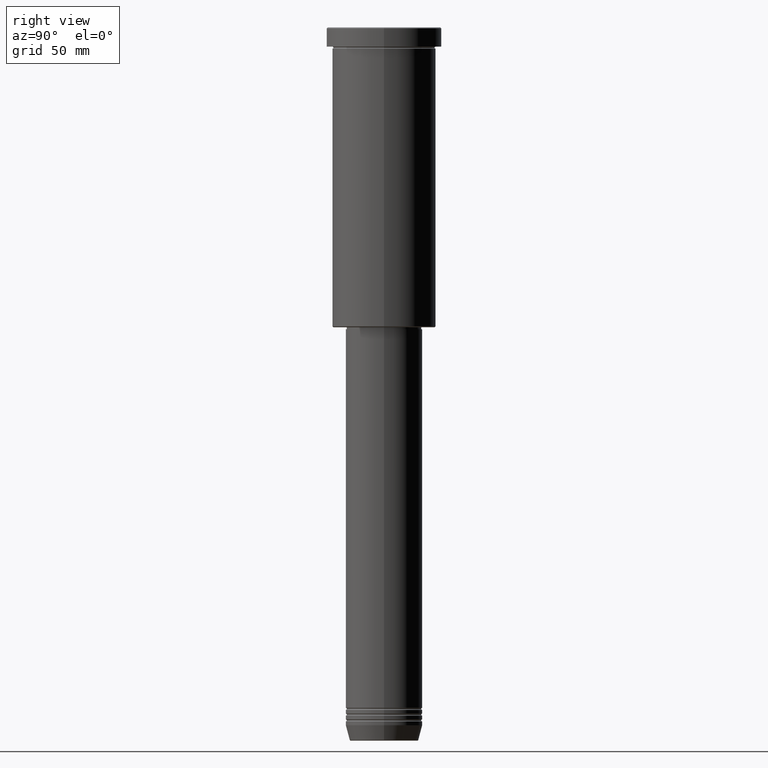
[diagram: clean part render]
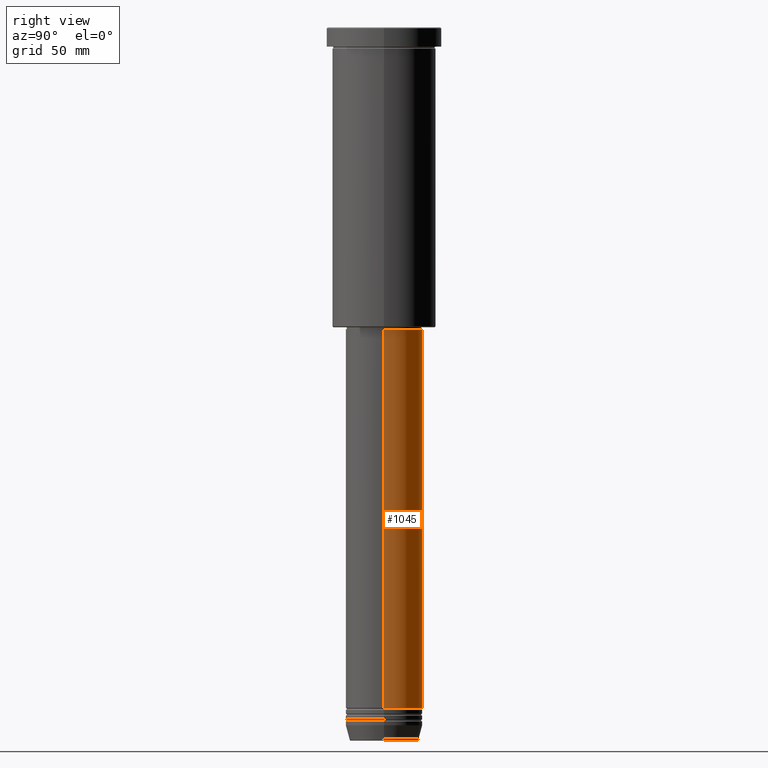
[diagram: same view with one face highlighted and labeled with its STEP entity id]
A machine part, right view. The second image highlights one B-rep face of the part: STEP entity #1045.
In plain terms, the highlighted cylindrical surface (partial cylindrical patch) has radius 20 mm, axis along (-0, -0, 1).
Its self-contained STEP definition (entity closure, byte-faithful):
#26 = AXIS2_PLACEMENT_3D ( 'NONE', #771, #386, #933 ) ;
#41 = DIRECTION ( 'NONE',  ( -0.000000000000000000, -0.000000000000000000, 1.000000000000000000 ) ) ;
#52 = DIRECTION ( 'NONE',  ( 1.000000000000000000, 0.000000000000000000, 0.000000000000000000 ) ) ;
#142 = ORIENTED_EDGE ( 'NONE', *, *, #339, .F. ) ;
#155 = ORIENTED_EDGE ( 'NONE', *, *, #920, .F. ) ;
#248 = CARTESIAN_POINT ( 'NONE',  ( 20.00000000000000000, 0.000000000000000000, -156.9999999999998863 ) ) ;
#304 = ORIENTED_EDGE ( 'NONE', *, *, #900, .T. ) ;
#333 = AXIS2_PLACEMENT_3D ( 'NONE', #981, #878, #52 ) ;
#339 = EDGE_CURVE ( 'NONE', #425, #633, #368, .T. ) ;
#356 = EDGE_CURVE ( 'NONE', #902, #378, #821, .T. ) ;
#368 = LINE ( 'NONE', #452, #702 ) ;
#378 = VERTEX_POINT ( 'NONE', #814 ) ;
#386 = DIRECTION ( 'NONE',  ( -0.000000000000000000, -0.000000000000000000, 1.000000000000000000 ) ) ;
#425 = VERTEX_POINT ( 'NONE', #1072 ) ;
#452 = CARTESIAN_POINT ( 'NONE',  ( 20.00000000000000000, 0.000000000000000000, 0.000000000000000000 ) ) ;
#459 = CARTESIAN_POINT ( 'NONE',  ( -20.00000000000000000, 2.449293598294706513E-15, 0.000000000000000000 ) ) ;
#558 = CARTESIAN_POINT ( 'NONE',  ( -20.00000000000000000, 2.449293598294706513E-15, -353.9999999999999432 ) ) ;
#630 = DIRECTION ( 'NONE',  ( -0.000000000000000000, -0.000000000000000000, 1.000000000000000000 ) ) ;
#633 = VERTEX_POINT ( 'NONE', #248 ) ;
#674 = ORIENTED_EDGE ( 'NONE', *, *, #356, .T. ) ;
#684 = DIRECTION ( 'NONE',  ( 1.000000000000000000, 0.000000000000000000, 0.000000000000000000 ) ) ;
#694 = AXIS2_PLACEMENT_3D ( 'NONE', #1035, #41, #684 ) ;
#702 = VECTOR ( 'NONE', #630, 1000.000000000000000 ) ;
#717 = CYLINDRICAL_SURFACE ( 'NONE', #333, 20.00000000000000000 ) ;
#765 = CIRCLE ( 'NONE', #694, 20.00000000000000000 ) ;
#771 = CARTESIAN_POINT ( 'NONE',  ( 0.000000000000000000, 0.000000000000000000, -156.9999999999998863 ) ) ;
#814 = CARTESIAN_POINT ( 'NONE',  ( -20.00000000000000000, 2.449293598294706513E-15, -156.9999999999998863 ) ) ;
#816 = VECTOR ( 'NONE', #916, 1000.000000000000000 ) ;
#821 = LINE ( 'NONE', #459, #816 ) ;
#844 = EDGE_LOOP ( 'NONE', ( #304, #674, #155, #142 ) ) ;
#878 = DIRECTION ( 'NONE',  ( -0.000000000000000000, -0.000000000000000000, 1.000000000000000000 ) ) ;
#900 = EDGE_CURVE ( 'NONE', #425, #902, #765, .T. ) ;
#902 = VERTEX_POINT ( 'NONE', #558 ) ;
#909 = CIRCLE ( 'NONE', #26, 20.00000000000000000 ) ;
#916 = DIRECTION ( 'NONE',  ( -0.000000000000000000, -0.000000000000000000, 1.000000000000000000 ) ) ;
#920 = EDGE_CURVE ( 'NONE', #633, #378, #909, .T. ) ;
#933 = DIRECTION ( 'NONE',  ( 1.000000000000000000, 0.000000000000000000, 0.000000000000000000 ) ) ;
#981 = CARTESIAN_POINT ( 'NONE',  ( 0.000000000000000000, 0.000000000000000000, 0.000000000000000000 ) ) ;
#1035 = CARTESIAN_POINT ( 'NONE',  ( 0.000000000000000000, 0.000000000000000000, -353.9999999999999432 ) ) ;
#1045 = ADVANCED_FACE ( 'NONE', ( #1068 ), #717, .T. ) ;
#1068 = FACE_OUTER_BOUND ( 'NONE', #844, .T. ) ;
#1072 = CARTESIAN_POINT ( 'NONE',  ( 20.00000000000000000, 0.000000000000000000, -353.9999999999999432 ) ) ;